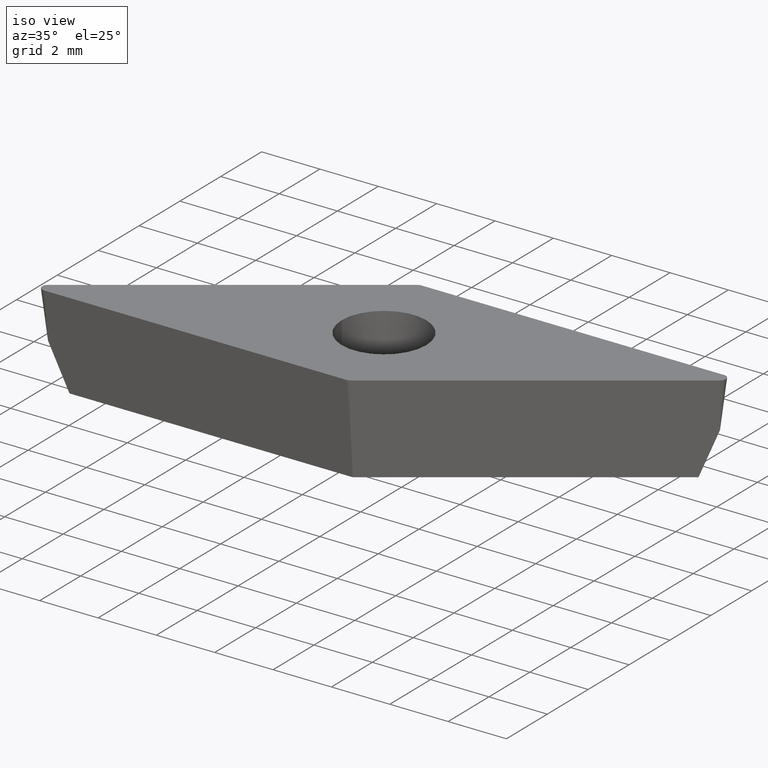
[diagram: clean part render]
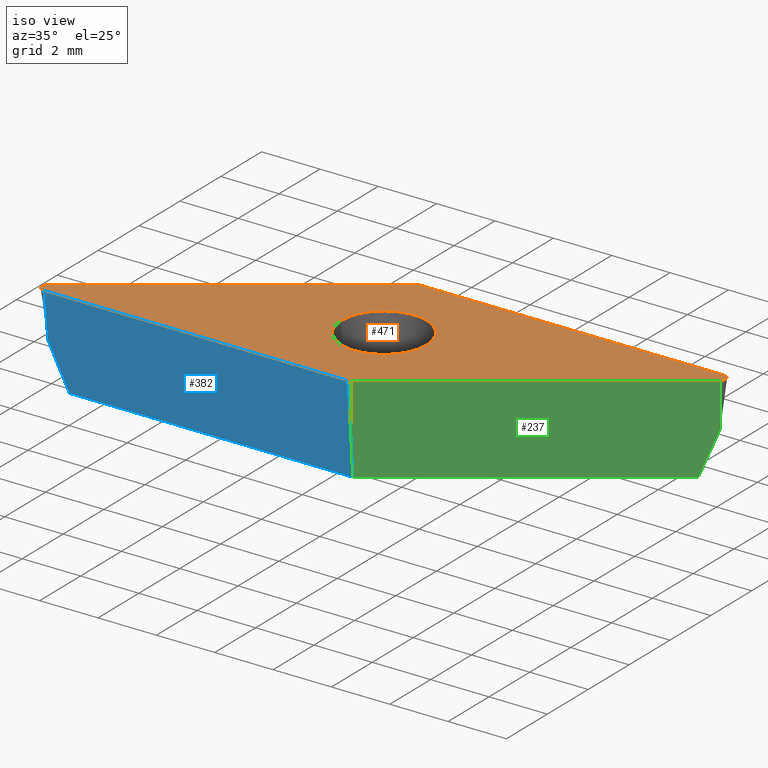
[diagram: same view with three faces highlighted in distinct colors, each labeled with its STEP entity id]
A machine part, iso view with three faces highlighted in distinct colors.
Their STEP definitions:

[orange] entity #471 — the highlighted planar face has unit normal (0, 0, -1).
#24 = EDGE_CURVE ( 'NONE', #215, #35, #372, .T. ) ;
#27 = VERTEX_POINT ( 'NONE', #340 ) ;
#35 = VERTEX_POINT ( 'NONE', #245 ) ;
#54 = DIRECTION ( 'NONE',  ( -0.0000000000000000000, -0.0000000000000000000, 1.000000000000000000 ) ) ;
#56 = CARTESIAN_POINT ( 'NONE',  ( -9.550209824300854000, -2.811169591142201900, 0.0000000000000000000 ) ) ;
#64 = EDGE_CURVE ( 'NONE', #131, #316, #370, .T. ) ;
#76 = DIRECTION ( 'NONE',  ( 0.8191520442889946900, 0.5735764363510419400, -0.0000000000000000000 ) ) ;
#95 = CARTESIAN_POINT ( 'NONE',  ( 1.450000000000000000, 0.0000000000000000000, 0.0000000000000000000 ) ) ;
#107 = EDGE_CURVE ( 'NONE', #27, #368, #178, .T. ) ;
#112 = DIRECTION ( 'NONE',  ( -0.8191520442889948000, -0.5735764363510417200, -0.0000000000000000000 ) ) ;
#113 = EDGE_CURVE ( 'NONE', #309, #294, #166, .T. ) ;
#123 = CARTESIAN_POINT ( 'NONE',  ( -1.450000000000000000, 1.775737858763661700E-016, 0.0000000000000000000 ) ) ;
#127 = FACE_OUTER_BOUND ( 'NONE', #269, .T. ) ;
#130 = LINE ( 'NONE', #227, #459 ) ;
#131 = VERTEX_POINT ( 'NONE', #398 ) ;
#135 = ORIENTED_EDGE ( 'NONE', *, *, #410, .F. ) ;
#136 = DIRECTION ( 'NONE',  ( -0.0000000000000000000, -0.0000000000000000000, 1.000000000000000000 ) ) ;
#137 = CIRCLE ( 'NONE', #306, 0.1999999999999999800 ) ;
#138 = CARTESIAN_POINT ( 'NONE',  ( 0.9380138969149678400, -2.974999999999999600, 0.0000000000000000000 ) ) ;
#140 = DIRECTION ( 'NONE',  ( 1.000000000000000000, 0.0000000000000000000, 0.0000000000000000000 ) ) ;
#141 = ORIENTED_EDGE ( 'NONE', *, *, #113, .F. ) ;
#142 = DIRECTION ( 'NONE',  ( 0.0000000000000000000, 0.0000000000000000000, 1.000000000000000000 ) ) ;
#143 = CARTESIAN_POINT ( 'NONE',  ( 0.0000000000000000000, 0.0000000000000000000, 0.0000000000000000000 ) ) ;
#144 = EDGE_CURVE ( 'NONE', #35, #27, #445, .T. ) ;
#147 = ORIENTED_EDGE ( 'NONE', *, *, #107, .T. ) ;
#150 = ORIENTED_EDGE ( 'NONE', *, *, #325, .T. ) ;
#151 = ORIENTED_EDGE ( 'NONE', *, *, #437, .T. ) ;
#157 = ORIENTED_EDGE ( 'NONE', *, *, #443, .T. ) ;
#161 = CARTESIAN_POINT ( 'NONE',  ( -1.052729184185178000, 3.138830408857797400, 0.0000000000000000000 ) ) ;
#163 = ORIENTED_EDGE ( 'NONE', *, *, #64, .T. ) ;
#166 = CIRCLE ( 'NONE', #240, 1.450000000000000000 ) ;
#167 = ORIENTED_EDGE ( 'NONE', *, *, #379, .T. ) ;
#170 = ORIENTED_EDGE ( 'NONE', *, *, #415, .T. ) ;
#172 = ORIENTED_EDGE ( 'NONE', *, *, #24, .T. ) ;
#173 = ORIENTED_EDGE ( 'NONE', *, *, #144, .T. ) ;
#178 = LINE ( 'NONE', #187, #184 ) ;
#182 = CARTESIAN_POINT ( 'NONE',  ( -9.435494537030644200, -2.975000000000001000, 0.0000000000000000000 ) ) ;
#183 = DIRECTION ( 'NONE',  ( 1.000000000000000000, 1.175192727644018400E-016, -0.0000000000000000000 ) ) ;
#184 = VECTOR ( 'NONE', #377, 1000.000000000000000 ) ;
#187 = CARTESIAN_POINT ( 'NONE',  ( -1.001073654690764100, 3.174999999999999800, 0.0000000000000000000 ) ) ;
#191 = DIRECTION ( 'NONE',  ( -1.000000000000000000, 1.734723475976802700E-014, 0.0000000000000000000 ) ) ;
#193 = AXIS2_PLACEMENT_3D ( 'NONE', #328, #54, #446 ) ;
#203 = DIRECTION ( 'NONE',  ( -0.0000000000000000000, -0.0000000000000000000, 1.000000000000000000 ) ) ;
#214 = DIRECTION ( 'NONE',  ( -1.000000000000000000, 0.0000000000000000000, 0.0000000000000000000 ) ) ;
#215 = VERTEX_POINT ( 'NONE', #295 ) ;
#223 = CARTESIAN_POINT ( 'NONE',  ( -10.06981349750329400, -3.175000000000001200, 0.0000000000000000000 ) ) ;
#226 = EDGE_LOOP ( 'NONE', ( #135, #141 ) ) ;
#227 = CARTESIAN_POINT ( 'NONE',  ( 1.001073654690764100, -3.174999999999999800, 0.0000000000000000000 ) ) ;
#232 = CARTESIAN_POINT ( 'NONE',  ( 0.9380138969149678400, -3.174999999999999800, 0.0000000000000000000 ) ) ;
#235 = CIRCLE ( 'NONE', #348, 0.2000000000000005100 ) ;
#238 = AXIS2_PLACEMENT_3D ( 'NONE', #374, #371, #367 ) ;
#240 = AXIS2_PLACEMENT_3D ( 'NONE', #285, #283, #282 ) ;
#244 = LINE ( 'NONE', #223, #426 ) ;
#245 = CARTESIAN_POINT ( 'NONE',  ( 9.550209824300852200, 2.811169591142202800, 0.0000000000000000000 ) ) ;
#263 = DIRECTION ( 'NONE',  ( -1.000000000000000000, 2.168404344971008900E-015, 0.0000000000000000000 ) ) ;
#265 = DIRECTION ( 'NONE',  ( -0.0000000000000000000, -0.0000000000000000000, 1.000000000000000000 ) ) ;
#267 = CARTESIAN_POINT ( 'NONE',  ( -0.9380138969149678400, 2.974999999999999600, 0.0000000000000000000 ) ) ;
#269 = EDGE_LOOP ( 'NONE', ( #147, #150, #151, #157, #163, #167, #170, #172, #173 ) ) ;
#274 = CARTESIAN_POINT ( 'NONE',  ( -0.9380138969149678400, 3.174999999999999800, 0.0000000000000000000 ) ) ;
#279 = VERTEX_POINT ( 'NONE', #161 ) ;
#282 = DIRECTION ( 'NONE',  ( 1.000000000000000000, 0.0000000000000000000, 0.0000000000000000000 ) ) ;
#283 = DIRECTION ( 'NONE',  ( 0.0000000000000000000, 0.0000000000000000000, 1.000000000000000000 ) ) ;
#285 = CARTESIAN_POINT ( 'NONE',  ( 0.0000000000000000000, 0.0000000000000000000, 0.0000000000000000000 ) ) ;
#290 = DIRECTION ( 'NONE',  ( 0.0000000000000000000, 0.0000000000000000000, -1.000000000000000000 ) ) ;
#294 = VERTEX_POINT ( 'NONE', #95 ) ;
#295 = CARTESIAN_POINT ( 'NONE',  ( 1.052729184185176200, -3.138830408857799600, 0.0000000000000000000 ) ) ;
#299 = VERTEX_POINT ( 'NONE', #56 ) ;
#306 = AXIS2_PLACEMENT_3D ( 'NONE', #267, #265, #263 ) ;
#309 = VERTEX_POINT ( 'NONE', #123 ) ;
#310 = VERTEX_POINT ( 'NONE', #232 ) ;
#311 = FACE_BOUND ( 'NONE', #226, .T. ) ;
#315 = AXIS2_PLACEMENT_3D ( 'NONE', #138, #136, #214 ) ;
#316 = VERTEX_POINT ( 'NONE', #349 ) ;
#325 = EDGE_CURVE ( 'NONE', #368, #279, #137, .T. ) ;
#328 = CARTESIAN_POINT ( 'NONE',  ( -9.435494537030644200, -2.975000000000001000, 0.0000000000000000000 ) ) ;
#330 = AXIS2_PLACEMENT_3D ( 'NONE', #143, #142, #140 ) ;
#340 = CARTESIAN_POINT ( 'NONE',  ( 9.435494537030640700, 3.175000000000002500, 0.0000000000000000000 ) ) ;
#348 = AXIS2_PLACEMENT_3D ( 'NONE', #182, #203, #191 ) ;
#349 = CARTESIAN_POINT ( 'NONE',  ( -9.435494537030644200, -3.175000000000001200, 0.0000000000000000000 ) ) ;
#367 = DIRECTION ( 'NONE',  ( -1.000000000000000000, 4.336808689942006700E-015, 0.0000000000000000000 ) ) ;
#368 = VERTEX_POINT ( 'NONE', #274 ) ;
#370 = CIRCLE ( 'NONE', #193, 0.2000000000000005100 ) ;
#371 = DIRECTION ( 'NONE',  ( -0.0000000000000000000, -0.0000000000000000000, 1.000000000000000000 ) ) ;
#372 = LINE ( 'NONE', #434, #373 ) ;
#373 = VECTOR ( 'NONE', #76, 1000.000000000000000 ) ;
#374 = CARTESIAN_POINT ( 'NONE',  ( 9.435494537030642400, 2.975000000000002300, 0.0000000000000000000 ) ) ;
#377 = DIRECTION ( 'NONE',  ( -1.000000000000000000, -2.350385455288036700E-016, -0.0000000000000000000 ) ) ;
#379 = EDGE_CURVE ( 'NONE', #316, #310, #130, .T. ) ;
#384 = CARTESIAN_POINT ( 'NONE',  ( 0.0000000000000000000, 0.0000000000000000000, 0.0000000000000000000 ) ) ;
#391 = PLANE ( 'NONE',  #396 ) ;
#394 = DIRECTION ( 'NONE',  ( -1.000000000000000000, 0.0000000000000000000, -0.0000000000000000000 ) ) ;
#396 = AXIS2_PLACEMENT_3D ( 'NONE', #384, #290, #394 ) ;
#398 = CARTESIAN_POINT ( 'NONE',  ( -9.635494537030645300, -2.975000000000001000, 0.0000000000000000000 ) ) ;
#410 = EDGE_CURVE ( 'NONE', #294, #309, #468, .T. ) ;
#415 = EDGE_CURVE ( 'NONE', #310, #215, #460, .T. ) ;
#426 = VECTOR ( 'NONE', #112, 1000.000000000000100 ) ;
#434 = CARTESIAN_POINT ( 'NONE',  ( 10.06981349750329200, 3.175000000000002500, 0.0000000000000000000 ) ) ;
#437 = EDGE_CURVE ( 'NONE', #279, #299, #244, .T. ) ;
#443 = EDGE_CURVE ( 'NONE', #299, #131, #235, .T. ) ;
#445 = CIRCLE ( 'NONE', #238, 0.2000000000000005100 ) ;
#446 = DIRECTION ( 'NONE',  ( -1.000000000000000000, 0.0000000000000000000, 0.0000000000000000000 ) ) ;
#459 = VECTOR ( 'NONE', #183, 1000.000000000000000 ) ;
#460 = CIRCLE ( 'NONE', #315, 0.1999999999999999800 ) ;
#468 = CIRCLE ( 'NONE', #330, 1.450000000000000000 ) ;
#471 = ADVANCED_FACE ( 'NONE', ( #311, #127 ), #391, .F. ) ;

[blue] entity #382 — the highlighted face is a freeform B-spline surface patch.
#13 = LINE ( 'NONE', #414, #345 ) ;
#22 = CARTESIAN_POINT ( 'NONE',  ( 0.9179971634270601700, -2.911515032109588000, -2.145912857063276800 ) ) ;
#37 = LINE ( 'NONE', #346, #451 ) ;
#52 = CARTESIAN_POINT ( 'NONE',  ( 0.9380138969149679500, -2.975000000000001000, -1.628869285594915400 ) ) ;
#70 = CARTESIAN_POINT ( 'NONE',  ( 0.8779636964512450600, -2.784545096328762800, -3.179999999999999300 ) ) ;
#85 = DIRECTION ( 'NONE',  ( -1.432199660924811500E-017, 0.1218693434051477400, -0.9925461516413219800 ) ) ;
#94 = ORIENTED_EDGE ( 'NONE', *, *, #262, .T. ) ;
#96 = ORIENTED_EDGE ( 'NONE', *, *, #104, .T. ) ;
#98 = ORIENTED_EDGE ( 'NONE', *, *, #228, .T. ) ;
#100 = ORIENTED_EDGE ( 'NONE', *, *, #379, .F. ) ;
#102 = ORIENTED_EDGE ( 'NONE', *, *, #158, .T. ) ;
#104 = EDGE_CURVE ( 'NONE', #115, #317, #323, .T. ) ;
#105 = ORIENTED_EDGE ( 'NONE', *, *, #447, .F. ) ;
#106 = VERTEX_POINT ( 'NONE', #455 ) ;
#115 = VERTEX_POINT ( 'NONE', #70 ) ;
#116 = CARTESIAN_POINT ( 'NONE',  ( 0.8779636964512450600, -2.784545096328762800, -3.179999999999999300 ) ) ;
#118 = VERTEX_POINT ( 'NONE', #381 ) ;
#129 = CARTESIAN_POINT ( 'NONE',  ( -9.435494537030644200, -2.975000000000000100, -1.628869285594922500 ) ) ;
#130 = LINE ( 'NONE', #227, #459 ) ;
#148 = CARTESIAN_POINT ( 'NONE',  ( -8.831448754462506700, -2.784545096328764600, -3.180000000000000600 ) ) ;
#158 = EDGE_CURVE ( 'NONE', #316, #118, #13, .T. ) ;
#165 = CARTESIAN_POINT ( 'NONE',  ( -9.032797348651866900, -2.848030064219177600, -2.662956428531634500 ) ) ;
#168 = CARTESIAN_POINT ( 'NONE',  ( 0.9380138969149685000, -2.706454115594514800, -3.815999999999999800 ) ) ;
#169 = CARTESIAN_POINT ( 'NONE',  ( -2.519822247733567900, -2.706454115594514800, -3.815999999999999800 ) ) ;
#171 = CARTESIAN_POINT ( 'NONE',  ( -5.977658392382109800, -2.706454115594516100, -3.815999999999999800 ) ) ;
#174 = CARTESIAN_POINT ( 'NONE',  ( -9.435494537030644200, -2.706454115594516100, -3.815999999999999800 ) ) ;
#176 = CARTESIAN_POINT ( 'NONE',  ( 0.9380138969149686100, -3.174999999999999800, 0.0000000000000000000 ) ) ;
#177 = CARTESIAN_POINT ( 'NONE',  ( -2.519822247733567900, -3.174999999999999800, 0.0000000000000000000 ) ) ;
#183 = DIRECTION ( 'NONE',  ( 1.000000000000000000, 1.175192727644018400E-016, -0.0000000000000000000 ) ) ;
#224 = CARTESIAN_POINT ( 'NONE',  ( -9.234145942841239600, -2.911515032109588800, -2.145912857063272400 ) ) ;
#227 = CARTESIAN_POINT ( 'NONE',  ( 1.001073654690764100, -3.174999999999999800, 0.0000000000000000000 ) ) ;
#228 = EDGE_CURVE ( 'NONE', #317, #310, #37, .T. ) ;
#231 = CARTESIAN_POINT ( 'NONE',  ( -2.358507120520003200, -2.784545096328761900, -3.180000000000000600 ) ) ;
#232 = CARTESIAN_POINT ( 'NONE',  ( 0.9380138969149678400, -3.174999999999999800, 0.0000000000000000000 ) ) ;
#242 = CARTESIAN_POINT ( 'NONE',  ( -9.435494537030644200, -3.175000000000001200, 0.0000000000000000000 ) ) ;
#262 = EDGE_CURVE ( 'NONE', #106, #115, #401, .T. ) ;
#273 = CARTESIAN_POINT ( 'NONE',  ( -5.977658392382109800, -3.175000000000001200, 0.0000000000000000000 ) ) ;
#275 = CARTESIAN_POINT ( 'NONE',  ( 0.9380138969149679500, -2.975000000000001000, -1.628869285594915400 ) ) ;
#305 = DIRECTION ( 'NONE',  ( 1.432199660924811500E-017, -0.1218693434051477400, 0.9925461516413219800 ) ) ;
#310 = VERTEX_POINT ( 'NONE', #232 ) ;
#314 = EDGE_LOOP ( 'NONE', ( #94, #96, #98, #100, #102, #105 ) ) ;
#316 = VERTEX_POINT ( 'NONE', #349 ) ;
#317 = VERTEX_POINT ( 'NONE', #275 ) ;
#323 = B_SPLINE_CURVE_WITH_KNOTS ( 'NONE', 3,
 ( #404, #344, #22, #52 ),
 .UNSPECIFIED., .F., .F.,
 ( 4, 4 ),
 ( 4.336808689942017700E-019, 0.001563932731954600700 ),
 .UNSPECIFIED. ) ;
#337 = CARTESIAN_POINT ( 'NONE',  ( -5.594977937491256300, -2.784545096328762800, -3.180000000000000600 ) ) ;
#344 = CARTESIAN_POINT ( 'NONE',  ( 0.8979804299391515000, -2.848030064219175400, -2.662956428531638500 ) ) ;
#345 = VECTOR ( 'NONE', #85, 1000.000000000000000 ) ;
#346 = CARTESIAN_POINT ( 'NONE',  ( 0.9380138969149686100, -3.174999999999999800, 0.0000000000000000000 ) ) ;
#349 = CARTESIAN_POINT ( 'NONE',  ( -9.435494537030644200, -3.175000000000001200, 0.0000000000000000000 ) ) ;
#361 = CARTESIAN_POINT ( 'NONE',  ( -8.831448754462506700, -2.784545096328764600, -3.180000000000000600 ) ) ;
#379 = EDGE_CURVE ( 'NONE', #316, #310, #130, .T. ) ;
#381 = CARTESIAN_POINT ( 'NONE',  ( -9.435494537030644200, -2.975000000000000100, -1.628869285594922500 ) ) ;
#382 = ADVANCED_FACE ( 'NONE', ( #395 ), #456, .T. ) ;
#395 = FACE_OUTER_BOUND ( 'NONE', #314, .T. ) ;
#401 = B_SPLINE_CURVE_WITH_KNOTS ( 'NONE', 3,
 ( #361, #337, #231, #116 ),
 .UNSPECIFIED., .F., .F.,
 ( 4, 4 ),
 ( 0.0000000000000000000, 0.009709412450913749600 ),
 .UNSPECIFIED. ) ;
#404 = CARTESIAN_POINT ( 'NONE',  ( 0.8779636964512450600, -2.784545096328762800, -3.179999999999999300 ) ) ;
#409 = B_SPLINE_CURVE_WITH_KNOTS ( 'NONE', 3,
 ( #148, #165, #224, #129 ),
 .UNSPECIFIED., .F., .F.,
 ( 4, 4 ),
 ( 8.673617379884034500E-019, 0.001675455421949979700 ),
 .UNSPECIFIED. ) ;
#414 = CARTESIAN_POINT ( 'NONE',  ( -9.435494537030644200, -3.175000000000001200, 0.0000000000000000000 ) ) ;
#447 = EDGE_CURVE ( 'NONE', #106, #118, #409, .T. ) ;
#451 = VECTOR ( 'NONE', #305, 1000.000000000000000 ) ;
#455 = CARTESIAN_POINT ( 'NONE',  ( -8.831448754462506700, -2.784545096328764600, -3.180000000000000600 ) ) ;
#456 = B_SPLINE_SURFACE_WITH_KNOTS ( 'NONE', 1, 3, ( 
 ( #242, #273, #177, #176 ),
 ( #174, #171, #169, #168 ) ),
 .UNSPECIFIED., .F., .F., .F.,
 ( 2, 2 ),
 ( 4, 4 ),
 ( 0.0000000000000000000, 1.000000000000000000 ),
 ( -0.01043656819172141000, -6.305975777579628800E-005 ),
 .UNSPECIFIED. ) ;
#459 = VECTOR ( 'NONE', #183, 1000.000000000000000 ) ;

[green] entity #237 — the highlighted face is a freeform B-spline surface patch.
#4 = LINE ( 'NONE', #425, #319 ) ;
#7 = EDGE_CURVE ( 'NONE', #115, #257, #66, .T. ) ;
#15 = EDGE_CURVE ( 'NONE', #215, #317, #4, .T. ) ;
#22 = CARTESIAN_POINT ( 'NONE',  ( 0.9179971634270601700, -2.911515032109588000, -2.145912857063276800 ) ) ;
#24 = EDGE_CURVE ( 'NONE', #215, #35, #372, .T. ) ;
#35 = VERTEX_POINT ( 'NONE', #245 ) ;
#48 = CARTESIAN_POINT ( 'NONE',  ( 9.550209824300852200, 2.811169591142202800, 0.0000000000000000000 ) ) ;
#52 = CARTESIAN_POINT ( 'NONE',  ( 0.9380138969149679500, -2.975000000000001000, -1.628869285594915400 ) ) ;
#66 = B_SPLINE_CURVE_WITH_KNOTS ( 'NONE', 3,
 ( #327, #287, #87, #322 ),
 .UNSPECIFIED., .F., .F.,
 ( 4, 4 ),
 ( 6.942281208919283300E-019, 0.009709412450913616100 ),
 .UNSPECIFIED. ) ;
#70 = CARTESIAN_POINT ( 'NONE',  ( 0.8779636964512450600, -2.784545096328762800, -3.179999999999999300 ) ) ;
#71 = CARTESIAN_POINT ( 'NONE',  ( 3.885222730888096000, -1.155497075521182000, 0.0000000000000000000 ) ) ;
#72 = CARTESIAN_POINT ( 'NONE',  ( 9.032797348652094300, 2.848030064219322400, -2.662956428530456800 ) ) ;
#73 = ORIENTED_EDGE ( 'NONE', *, *, #24, .F. ) ;
#74 = ORIENTED_EDGE ( 'NONE', *, *, #15, .T. ) ;
#75 = CARTESIAN_POINT ( 'NONE',  ( 9.435494537030640700, 2.975000000000666200, -1.628869285589508800 ) ) ;
#76 = DIRECTION ( 'NONE',  ( 0.8191520442889946900, 0.5735764363510419400, -0.0000000000000000000 ) ) ;
#78 = ORIENTED_EDGE ( 'NONE', *, *, #104, .F. ) ;
#80 = ORIENTED_EDGE ( 'NONE', *, *, #7, .T. ) ;
#82 = ORIENTED_EDGE ( 'NONE', *, *, #423, .T. ) ;
#87 = CARTESIAN_POINT ( 'NONE',  ( 6.180287068457972500, 0.9281816987769934100, -3.180000000000000200 ) ) ;
#91 = CARTESIAN_POINT ( 'NONE',  ( 9.234145942840971300, 2.911515032109031500, -2.145912857060378300 ) ) ;
#93 = ORIENTED_EDGE ( 'NONE', *, *, #441, .T. ) ;
#103 = CARTESIAN_POINT ( 'NONE',  ( 9.435494537030640700, 2.975000000000666200, -1.628869285589508800 ) ) ;
#104 = EDGE_CURVE ( 'NONE', #115, #317, #323, .T. ) ;
#115 = VERTEX_POINT ( 'NONE', #70 ) ;
#155 = DIRECTION ( 'NONE',  ( -0.06990138369076601100, 0.09982952178648428500, -0.9925461516413219800 ) ) ;
#160 = CARTESIAN_POINT ( 'NONE',  ( 8.831448754462112300, 2.784545096328765900, -3.180000000000000200 ) ) ;
#210 = VECTOR ( 'NONE', #216, 1000.000000000000000 ) ;
#215 = VERTEX_POINT ( 'NONE', #295 ) ;
#216 = DIRECTION ( 'NONE',  ( 0.06990138369076601100, -0.09982952178648428500, 0.9925461516413219800 ) ) ;
#237 = ADVANCED_FACE ( 'NONE', ( #375 ), #462, .T. ) ;
#245 = CARTESIAN_POINT ( 'NONE',  ( 9.550209824300852200, 2.811169591142202800, 0.0000000000000000000 ) ) ;
#257 = VERTEX_POINT ( 'NONE', #364 ) ;
#275 = CARTESIAN_POINT ( 'NONE',  ( 0.9380138969149679500, -2.975000000000001000, -1.628869285594915400 ) ) ;
#287 = CARTESIAN_POINT ( 'NONE',  ( 3.529125382452774400, -0.9281816987732596200, -3.180000000000000200 ) ) ;
#295 = CARTESIAN_POINT ( 'NONE',  ( 1.052729184185176200, -3.138830408857799600, 0.0000000000000000000 ) ) ;
#296 = CARTESIAN_POINT ( 'NONE',  ( 3.616475852243856700, -0.7716867564672292800, -3.815999999999999800 ) ) ;
#300 = VERTEX_POINT ( 'NONE', #75 ) ;
#307 = B_SPLINE_CURVE_WITH_KNOTS ( 'NONE', 3,
 ( #160, #72, #91, #103 ),
 .UNSPECIFIED., .F., .F.,
 ( 4, 4 ),
 ( 8.673617379884035500E-019, 0.001675455421955207700 ),
 .UNSPECIFIED. ) ;
#308 = EDGE_LOOP ( 'NONE', ( #73, #74, #78, #80, #82, #93 ) ) ;
#317 = VERTEX_POINT ( 'NONE', #275 ) ;
#319 = VECTOR ( 'NONE', #155, 1000.000000000000000 ) ;
#322 = CARTESIAN_POINT ( 'NONE',  ( 8.831448754462112300, 2.784545096328765900, -3.180000000000000200 ) ) ;
#323 = B_SPLINE_CURVE_WITH_KNOTS ( 'NONE', 3,
 ( #404, #344, #22, #52 ),
 .UNSPECIFIED., .F., .F.,
 ( 4, 4 ),
 ( 4.336808689942017700E-019, 0.001563932731954600700 ),
 .UNSPECIFIED. ) ;
#324 = CARTESIAN_POINT ( 'NONE',  ( 1.052729184185176200, -3.138830408857799600, 0.0000000000000000000 ) ) ;
#327 = CARTESIAN_POINT ( 'NONE',  ( 0.8779636964512450600, -2.784545096328762800, -3.179999999999999300 ) ) ;
#344 = CARTESIAN_POINT ( 'NONE',  ( 0.8979804299391515000, -2.848030064219175400, -2.662956428531638500 ) ) ;
#351 = CARTESIAN_POINT ( 'NONE',  ( 0.7839823055409309600, -2.755020089803851900, -3.815999999999999800 ) ) ;
#353 = CARTESIAN_POINT ( 'NONE',  ( 9.550209824300852200, 2.811169591142202800, 0.0000000000000000000 ) ) ;
#354 = CARTESIAN_POINT ( 'NONE',  ( 6.717716277595252800, 0.8278362578094081700, 0.0000000000000000000 ) ) ;
#355 = CARTESIAN_POINT ( 'NONE',  ( 9.281462945656606700, 3.194979910196150900, -3.815999999999999800 ) ) ;
#357 = CARTESIAN_POINT ( 'NONE',  ( 6.448969398950999300, 1.211646576863351500, -3.815999999999999800 ) ) ;
#364 = CARTESIAN_POINT ( 'NONE',  ( 8.831448754462112300, 2.784545096328765900, -3.180000000000000200 ) ) ;
#372 = LINE ( 'NONE', #434, #373 ) ;
#373 = VECTOR ( 'NONE', #76, 1000.000000000000000 ) ;
#375 = FACE_OUTER_BOUND ( 'NONE', #308, .T. ) ;
#399 = LINE ( 'NONE', #48, #210 ) ;
#404 = CARTESIAN_POINT ( 'NONE',  ( 0.8779636964512450600, -2.784545096328762800, -3.179999999999999300 ) ) ;
#423 = EDGE_CURVE ( 'NONE', #257, #300, #307, .T. ) ;
#425 = CARTESIAN_POINT ( 'NONE',  ( 1.052729184185176200, -3.138830408857799600, 0.0000000000000000000 ) ) ;
#434 = CARTESIAN_POINT ( 'NONE',  ( 10.06981349750329200, 3.175000000000002500, 0.0000000000000000000 ) ) ;
#441 = EDGE_CURVE ( 'NONE', #300, #35, #399, .T. ) ;
#462 = B_SPLINE_SURFACE_WITH_KNOTS ( 'NONE', 1, 3, ( 
 ( #324, #71, #354, #353 ),
 ( #351, #296, #357, #355 ) ),
 .UNSPECIFIED., .F., .F., .F.,
 ( 2, 2 ),
 ( 4, 4 ),
 ( 0.0000000000000000000, 1.000000000000000000 ),
 ( -0.01100782739441826100, -0.0006343189604726489300 ),
 .UNSPECIFIED. ) ;